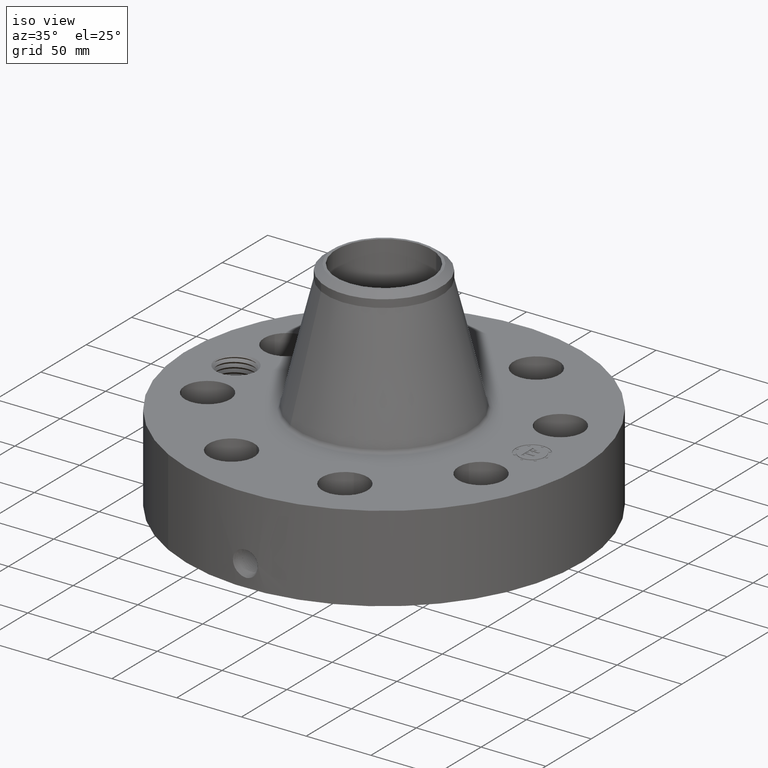
[diagram: clean part render]
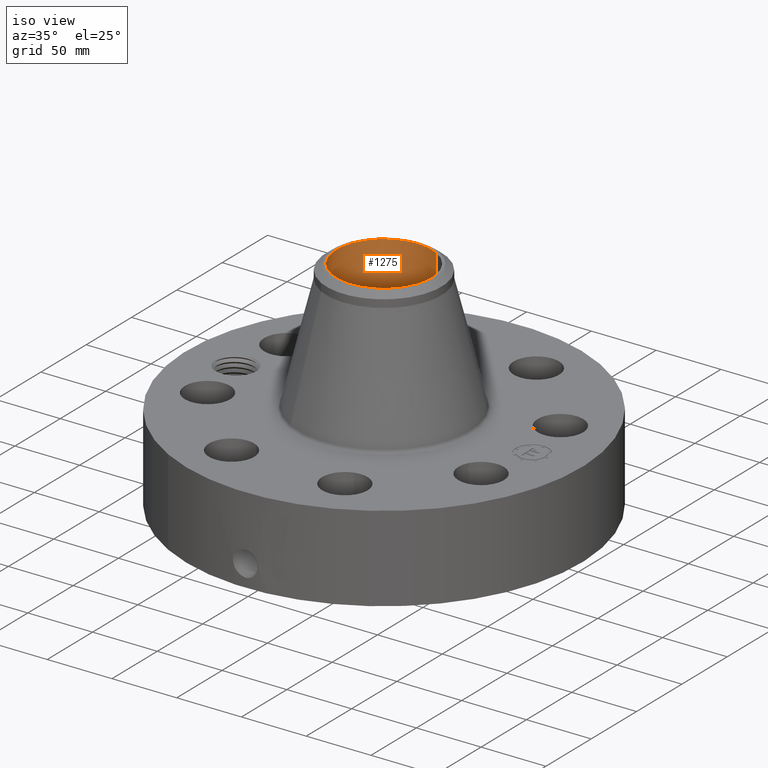
[diagram: same view with one face highlighted and labeled with its STEP entity id]
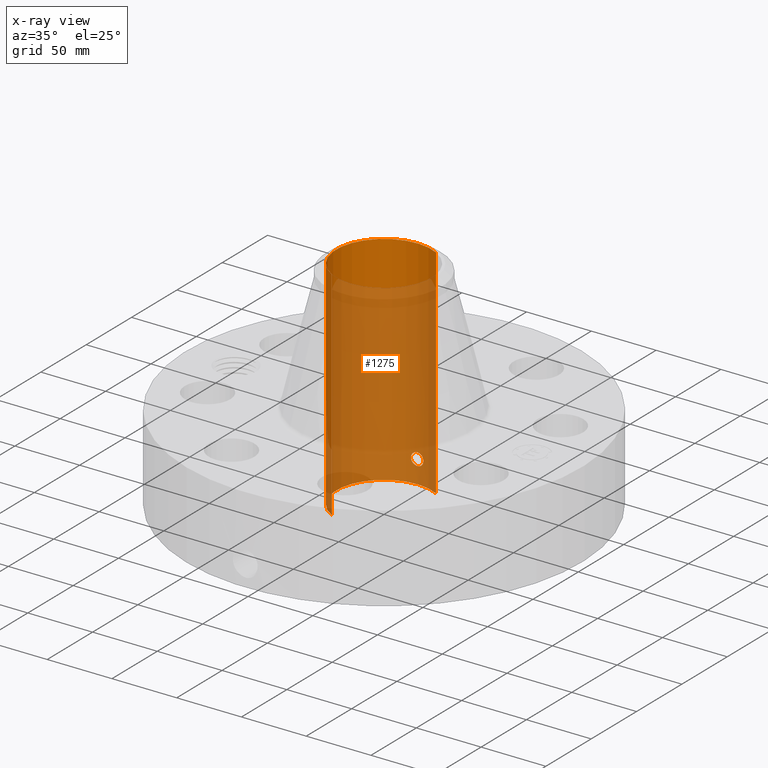
[diagram: x-ray of the same camera — body ghosted, the highlighted face saturated]
A machine part, iso view. The second image highlights one B-rep face of the part: STEP entity #1275.
The next image is the same camera in x-ray: the body ghosted, the highlighted face saturated — about 79% of this face is hidden behind the body in this view.
In plain terms, the highlighted cylindrical surface (partial cylindrical patch) has radius 36.83 mm, axis along (0, 0, -1).
Its self-contained STEP definition (entity closure, byte-faithful):
#255=AXIS2_PLACEMENT_3D('Circle Axis2P3D',#253,#254,$) ;
#1152=AXIS2_PLACEMENT_3D('Cylinder Axis2P3D',#1149,#1150,#1151) ;
#1224=AXIS2_PLACEMENT_3D('Circle Axis2P3D',#1222,#1223,$) ;
#248=CARTESIAN_POINT('Vertex',(0.695167030979,1.27249471475,0.250000000001)) ;
#250=CARTESIAN_POINT('Vertex',(-0.695167030979,-1.27249471475,0.250000000001)) ;
#253=CARTESIAN_POINT('Axis2P3D Location',(0.,0.,0.250000000001)) ;
#1149=CARTESIAN_POINT('Axis2P3D Location',(0.,0.,3.56000000001)) ;
#1158=CARTESIAN_POINT('Vertex',(0.695167030979,1.27249471475,6.87000000003)) ;
#1160=CARTESIAN_POINT('Vertex',(-0.695167030979,-1.27249471475,6.87000000003)) ;
#1163=CARTESIAN_POINT('Line Origine',(0.695167030979,1.27249471475,3.56000000001)) ;
#1168=CARTESIAN_POINT('Line Origine',(-0.695167030979,-1.27249471475,3.56000000001)) ;
#1222=CARTESIAN_POINT('Axis2P3D Location',(0.,0.,6.87000000003)) ;
#1234=CARTESIAN_POINT('Control Point',(0.164546730355,1.44063332377,1.02989228849)) ;
#1235=CARTESIAN_POINT('Control Point',(0.153731070915,1.44186867031,1.0496902203)) ;
#1236=CARTESIAN_POINT('Control Point',(0.139944075099,1.4433405746,1.0678501142)) ;
#1237=CARTESIAN_POINT('Control Point',(0.123510243053,1.44489924446,1.08378933192)) ;
#1238=CARTESIAN_POINT('Control Point',(0.0771457667536,1.44849158589,1.11680313088)) ;
#1239=CARTESIAN_POINT('Control Point',(0.0211416426398,1.45046278414,1.13099774423)) ;
#1240=CARTESIAN_POINT('Control Point',(-0.0138877540761,1.45055904578,1.13166367444)) ;
#1241=CARTESIAN_POINT('Control Point',(-0.0704180054652,1.4488559579,1.11959366782)) ;
#1242=CARTESIAN_POINT('Control Point',(-0.118016251893,1.44536877231,1.08833659058)) ;
#1243=CARTESIAN_POINT('Control Point',(-0.135050957045,1.44381724598,1.07301259638)) ;
#1244=CARTESIAN_POINT('Control Point',(-0.174424603891,1.439735322,1.02499594326)) ;
#1245=CARTESIAN_POINT('Control Point',(-0.192227243462,1.43719597583,0.964023576815)) ;
#1246=CARTESIAN_POINT('Control Point',(-0.192994709917,1.43707883877,0.923187725851)) ;
#1247=CARTESIAN_POINT('Control Point',(-0.183180576882,1.43850499696,0.884216738791)) ;
#1248=CARTESIAN_POINT('Control Point',(-0.164546730355,1.44063332377,0.850107711515)) ;
#1249=CARTESIAN_POINT('Vertex',(0.164546730355,1.44063332377,1.02989228849)) ;
#1251=CARTESIAN_POINT('Vertex',(-0.164546730355,1.44063332377,0.850107711515)) ;
#1255=CARTESIAN_POINT('Control Point',(-0.164546730355,1.44063332377,0.850107711515)) ;
#1256=CARTESIAN_POINT('Control Point',(-0.153731070918,1.44186867031,0.830309779713)) ;
#1257=CARTESIAN_POINT('Control Point',(-0.139944075106,1.4433405746,0.812149885816)) ;
#1258=CARTESIAN_POINT('Control Point',(-0.123510243046,1.44489924446,0.796210668084)) ;
#1259=CARTESIAN_POINT('Control Point',(-0.0771457667494,1.44849158589,0.763196869126)) ;
#1260=CARTESIAN_POINT('Control Point',(-0.0211416426392,1.45046278414,0.74900225578)) ;
#1261=CARTESIAN_POINT('Control Point',(0.0138877540662,1.45055904578,0.748336325563)) ;
#1262=CARTESIAN_POINT('Control Point',(0.0704180054538,1.4488559579,0.760406332184)) ;
#1263=CARTESIAN_POINT('Control Point',(0.118016251881,1.44536877231,0.79166340942)) ;
#1264=CARTESIAN_POINT('Control Point',(0.135050957048,1.44381724598,0.806987403631)) ;
#1265=CARTESIAN_POINT('Control Point',(0.174424603891,1.439735322,0.855004056753)) ;
#1266=CARTESIAN_POINT('Control Point',(0.192227243463,1.43719597583,0.915976423192)) ;
#1267=CARTESIAN_POINT('Control Point',(0.192994709919,1.43707883877,0.956812274152)) ;
#1268=CARTESIAN_POINT('Control Point',(0.183180576883,1.43850499696,0.995783261214)) ;
#1269=CARTESIAN_POINT('Control Point',(0.164546730355,1.44063332377,1.02989228849)) ;
#254=DIRECTION('Axis2P3D Direction',(0.,0.,-0.0393700787402)) ;
#1150=DIRECTION('Axis2P3D Direction',(0.,0.,-0.0393700787402)) ;
#1151=DIRECTION('Axis2P3D XDirection',(-0.0188750212049,-0.0345504945626,0.)) ;
#1164=DIRECTION('Vector Direction',(0.,0.,-0.0393700787402)) ;
#1169=DIRECTION('Vector Direction',(0.,0.,-0.0393700787402)) ;
#1223=DIRECTION('Axis2P3D Direction',(0.,0.,-0.0393700787402)) ;
#1165=VECTOR('Line Direction',#1164,0.0393700787402) ;
#1170=VECTOR('Line Direction',#1169,0.0393700787402) ;
#1228=ORIENTED_EDGE('',*,*,#1226,.F.) ;
#1229=ORIENTED_EDGE('',*,*,#1172,.T.) ;
#1230=ORIENTED_EDGE('',*,*,#257,.T.) ;
#1231=ORIENTED_EDGE('',*,*,#1167,.F.) ;
#1272=ORIENTED_EDGE('',*,*,#1253,.F.) ;
#1273=ORIENTED_EDGE('',*,*,#1270,.F.) ;
#1274=FACE_BOUND('',#1271,.T.) ;
#1275=ADVANCED_FACE('PartBody',(#1232,#1274),#1153,.F.) ;
#1233=B_SPLINE_CURVE_WITH_KNOTS('',5,(#1234,#1235,#1236,#1237,#1238,#1239,#1240,#1241,#1242,#1243,#1244,#1245,#1246,#1247,#1248),.UNSPECIFIED.,.F.,.U.,(6,3,3,3,6),(0.,4.05789415087,10.1286634858,14.1897420028,21.1809178298),.UNSPECIFIED.) ;
#1254=B_SPLINE_CURVE_WITH_KNOTS('',5,(#1255,#1256,#1257,#1258,#1259,#1260,#1261,#1262,#1263,#1264,#1265,#1266,#1267,#1268,#1269),.UNSPECIFIED.,.F.,.U.,(6,3,3,3,6),(0.,4.05789414977,10.1286634851,14.1897420012,21.1809178286),.UNSPECIFIED.) ;
#256=CIRCLE('generated circle',#255,1.45000000001) ;
#1225=CIRCLE('generated circle',#1224,1.45000000001) ;
#1153=CYLINDRICAL_SURFACE('generated cylinder',#1152,1.45000000001) ;
#257=EDGE_CURVE('',#251,#249,#256,.T.) ;
#1167=EDGE_CURVE('',#1159,#249,#1166,.T.) ;
#1172=EDGE_CURVE('',#1161,#251,#1171,.T.) ;
#1226=EDGE_CURVE('',#1161,#1159,#1225,.T.) ;
#1253=EDGE_CURVE('',#1250,#1252,#1233,.T.) ;
#1270=EDGE_CURVE('',#1252,#1250,#1254,.T.) ;
#1227=EDGE_LOOP('',(#1228,#1229,#1230,#1231)) ;
#1271=EDGE_LOOP('',(#1272,#1273)) ;
#1232=FACE_OUTER_BOUND('',#1227,.T.) ;
#1166=LINE('Line',#1163,#1165) ;
#1171=LINE('Line',#1168,#1170) ;
#249=VERTEX_POINT('',#248) ;
#251=VERTEX_POINT('',#250) ;
#1159=VERTEX_POINT('',#1158) ;
#1161=VERTEX_POINT('',#1160) ;
#1250=VERTEX_POINT('',#1249) ;
#1252=VERTEX_POINT('',#1251) ;